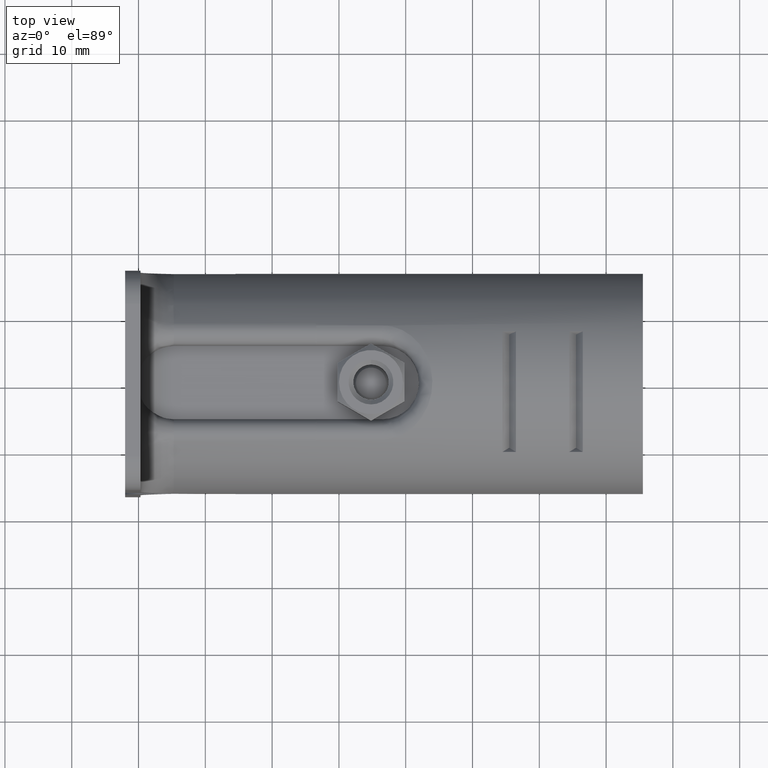
[diagram: clean part render]
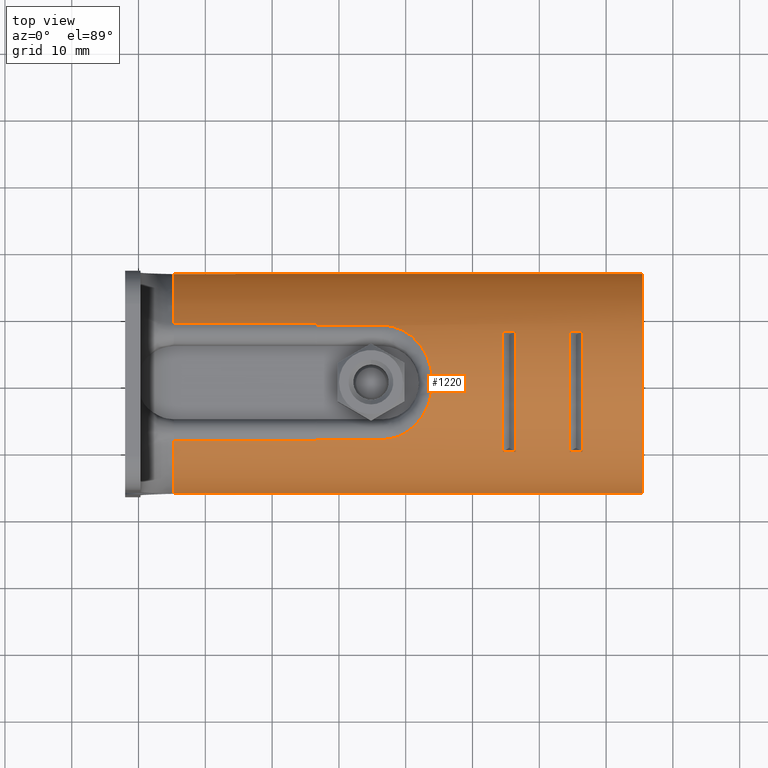
[diagram: same view with one face highlighted and labeled with its STEP entity id]
A machine part, top view. The second image highlights one B-rep face of the part: STEP entity #1220.
In plain terms, the highlighted cylindrical surface (partial cylindrical patch) has radius 16.5 mm, axis along (-1, 0, 0).
Its self-contained STEP definition (entity closure, byte-faithful):
#38 = DIRECTION ( 'NONE',  ( -1.000000000000000000, 0.000000000000000000, 0.000000000000000000 ) ) ;
#52 = EDGE_CURVE ( 'NONE', #2660, #7769, #12528, .T. ) ;
#99 = CARTESIAN_POINT ( 'NONE',  ( 26.49999999902000170, 8.532221492319999712, 14.12271829668000045 ) ) ;
#178 = CARTESIAN_POINT ( 'NONE',  ( -4.700000000000000178, 0.000000000000000000, 0.000000000000000000 ) ) ;
#301 = AXIS2_PLACEMENT_3D ( 'NONE', #5399, #20593, #3683 ) ;
#403 = CIRCLE ( 'NONE', #21330, 16.50000000000000355 ) ;
#440 = CARTESIAN_POINT ( 'NONE',  ( 31.12219301227714752, 6.721380856533748727, 15.06900067574641966 ) ) ;
#486 = DIRECTION ( 'NONE',  ( 0.000000000000000000, -0.6290635339863875908, 0.7773538899423845239 ) ) ;
#489 = VERTEX_POINT ( 'NONE', #19041 ) ;
#573 = ORIENTED_EDGE ( 'NONE', *, *, #5079, .T. ) ;
#605 = CARTESIAN_POINT ( 'NONE',  ( -4.700000000000000178, 8.793709622338999665, 13.96139018340000071 ) ) ;
#636 = CARTESIAN_POINT ( 'NONE',  ( 31.12240410789961942, -6.725412656935299438, 15.06811766180911505 ) ) ;
#747 = CARTESIAN_POINT ( 'NONE',  ( -4.000000000000000000, 16.43167672514999822, 1.500000000000000000 ) ) ;
#751 = CARTESIAN_POINT ( 'NONE',  ( 32.94846964657010346, 4.357845667556117242, 15.91422211981977775 ) ) ;
#859 = CARTESIAN_POINT ( 'NONE',  ( 33.80846163388365966, -1.933018522917530069, 16.38810663770023623 ) ) ;
#906 = CARTESIAN_POINT ( 'NONE',  ( 46.50000000000000000, 7.620451689224000624, 14.63484595245999920 ) ) ;
#950 = VECTOR ( 'NONE', #18025, 1000.000000000000000 ) ;
#956 = CARTESIAN_POINT ( 'NONE',  ( 31.70041331587229649, -6.151032671605825008, 15.31090555844572876 ) ) ;
#997 = VECTOR ( 'NONE', #12013, 1000.000000000000000 ) ;
#1066 = CARTESIAN_POINT ( 'NONE',  ( 33.11683839140767560, 4.025588890698280409, 16.00302075740041730 ) ) ;
#1084 = EDGE_CURVE ( 'NONE', #9320, #3511, #8273, .T. ) ;
#1153 = VERTEX_POINT ( 'NONE', #13355 ) ;
#1207 = ORIENTED_EDGE ( 'NONE', *, *, #5714, .T. ) ;
#1220 = ADVANCED_FACE ( 'NONE', ( #5185, #15543, #20279 ), #3575, .T. ) ;
#1242 = CARTESIAN_POINT ( 'NONE',  ( 46.50000000000000000, -10.37954831077999884, 12.82633918404999918 ) ) ;
#1466 = EDGE_CURVE ( 'NONE', #11993, #11050, #11798, .T. ) ;
#1642 = CARTESIAN_POINT ( 'NONE',  ( 65.50000000000000000, 0.000000000000000000, 0.000000000000000000 ) ) ;
#1661 = CARTESIAN_POINT ( 'NONE',  ( 46.50000000000000000, -10.37954831077999884, 12.82633918404999918 ) ) ;
#1691 = VECTOR ( 'NONE', #17975, 1000.000000000000000 ) ;
#1811 = CARTESIAN_POINT ( 'NONE',  ( 30.14793475069829398, 7.457048805584250317, 14.71881126214344171 ) ) ;
#1855 = EDGE_CURVE ( 'NONE', #13505, #17544, #14773, .T. ) ;
#1884 = ORIENTED_EDGE ( 'NONE', *, *, #4150, .F. ) ;
#1924 = CARTESIAN_POINT ( 'NONE',  ( 29.92360564718172355, 7.594929155194949821, 14.64832644325415245 ) ) ;
#2002 = AXIS2_PLACEMENT_3D ( 'NONE', #15906, #2362, #14014 ) ;
#2041 = CARTESIAN_POINT ( 'NONE',  ( 16.69051446749000078, 8.532223837475999773, 14.12267188647000005 ) ) ;
#2047 = VERTEX_POINT ( 'NONE', #747 ) ;
#2225 = VERTEX_POINT ( 'NONE', #20384 ) ;
#2294 = EDGE_CURVE ( 'NONE', #11993, #17544, #20212, .T. ) ;
#2353 = CARTESIAN_POINT ( 'NONE',  ( 32.08582940128891181, -5.700785428464818061, 15.48525766996171704 ) ) ;
#2362 = DIRECTION ( 'NONE',  ( -1.000000000000000000, 0.000000000000000000, 0.000000000000000000 ) ) ;
#2414 = CARTESIAN_POINT ( 'NONE',  ( 46.50000000000000000, 0.000000000000000000, 0.000000000000000000 ) ) ;
#2468 = CARTESIAN_POINT ( 'NONE',  ( 16.69051064318999877, -8.532224505211997823, 14.12267162089000117 ) ) ;
#2470 = CARTESIAN_POINT ( 'NONE',  ( 31.93558551534559342, -5.885866425272054947, 15.41566424813026082 ) ) ;
#2537 = B_SPLINE_CURVE_WITH_KNOTS ( 'NONE', 3,
 ( #3933, #20442, #12197, #13927 ),
 .UNSPECIFIED., .F., .F.,
 ( 4, 4 ),
 ( 0.000000000000000000, 1.000000000000000000 ),
 .UNSPECIFIED. ) ;
#2553 = AXIS2_PLACEMENT_3D ( 'NONE', #13132, #6487, #20170 ) ;
#2586 = CARTESIAN_POINT ( 'NONE',  ( 33.21898078998936654, 3.800401653616999553, 16.05809364580159482 ) ) ;
#2660 = VERTEX_POINT ( 'NONE', #11238 ) ;
#2703 = CARTESIAN_POINT ( 'NONE',  ( 31.45666054216051677, -6.405357489741653865, 15.20603136138839240 ) ) ;
#2813 = CARTESIAN_POINT ( 'NONE',  ( 33.54582092299990848, 2.925129781151098562, 16.23875239057163711 ) ) ;
#3014 = CARTESIAN_POINT ( 'NONE',  ( 4.500000000000000000, 16.46966909200000018, 1.000000000000000000 ) ) ;
#3199 = DIRECTION ( 'NONE',  ( 1.000000000000000000, 0.000000000000000000, 0.000000000000000000 ) ) ;
#3218 = CARTESIAN_POINT ( 'NONE',  ( 65.50000000000000000, 16.46966909200000018, 1.000000000000000000 ) ) ;
#3226 = DIRECTION ( 'NONE',  ( -1.000000000000000000, 0.000000000000000000, 0.000000000000000000 ) ) ;
#3233 = CARTESIAN_POINT ( 'NONE',  ( 27.99999999972999731, 8.362049855777001994, 14.22413565987999995 ) ) ;
#3234 = ORIENTED_EDGE ( 'NONE', *, *, #4811, .T. ) ;
#3235 = ORIENTED_EDGE ( 'NONE', *, *, #10408, .T. ) ;
#3244 = EDGE_CURVE ( 'NONE', #9740, #2660, #21147, .T. ) ;
#3313 = VERTEX_POINT ( 'NONE', #16837 ) ;
#3411 = CARTESIAN_POINT ( 'NONE',  ( -4.000000000000000000, 16.43167672514999822, 1.500000000000000000 ) ) ;
#3444 = DIRECTION ( 'NONE',  ( -1.000000000000000000, 0.000000000000000000, 0.000000000000000000 ) ) ;
#3450 = CARTESIAN_POINT ( 'NONE',  ( 27.00973079907190311, 8.532257371116667599, 14.12269748152757565 ) ) ;
#3481 = LINE ( 'NONE', #10084, #6360 ) ;
#3511 = VERTEX_POINT ( 'NONE', #11362 ) ;
#3523 = CARTESIAN_POINT ( 'NONE',  ( -4.700000000000000178, 16.42884679370000001, 1.530683843640999964 ) ) ;
#3575 = CYLINDRICAL_SURFACE ( 'NONE', #301, 16.50000000000000000 ) ;
#3596 = CARTESIAN_POINT ( 'NONE',  ( 28.38948258338935560, 8.271575638789229856, 14.27732647587170511 ) ) ;
#3618 = EDGE_CURVE ( 'NONE', #5807, #11913, #12140, .T. ) ;
#3644 = ORIENTED_EDGE ( 'NONE', *, *, #19133, .T. ) ;
#3683 = DIRECTION ( 'NONE',  ( 0.000000000000000000, 1.000000000000000000, 0.000000000000000000 ) ) ;
#3694 = LINE ( 'NONE', #10413, #4892 ) ;
#3702 = CARTESIAN_POINT ( 'NONE',  ( 30.42153188437745115, 7.278963987723555462, 14.80826979873417493 ) ) ;
#3735 = ORIENTED_EDGE ( 'NONE', *, *, #12110, .T. ) ;
#3908 = CARTESIAN_POINT ( 'NONE',  ( 19.96034042863333369, -8.532237117428309148, 14.12270971775805961 ) ) ;
#3909 = CARTESIAN_POINT ( 'NONE',  ( 28.77065060431867849, 8.147150517533452430, 14.34947063349022756 ) ) ;
#3933 = CARTESIAN_POINT ( 'NONE',  ( 16.49998531529999823, -8.793551395695999418, 13.96148182842000018 ) ) ;
#3935 = DIRECTION ( 'NONE',  ( 0.000000000000000000, -0.9958591954639380850, 0.09090909090909353452 ) ) ;
#4014 = CARTESIAN_POINT ( 'NONE',  ( 32.15818042489721051, 5.603456784641278610, 15.51972990243371164 ) ) ;
#4126 = CARTESIAN_POINT ( 'NONE',  ( 30.95147257239222682, -6.873114171650634319, 15.00112394183167552 ) ) ;
#4150 = EDGE_CURVE ( 'NONE', #14128, #13505, #19856, .T. ) ;
#4205 = CARTESIAN_POINT ( 'NONE',  ( 2.366662469676665825, 8.793652940578745358, 13.96141780643319663 ) ) ;
#4244 = CARTESIAN_POINT ( 'NONE',  ( 31.62345098526546394, 6.237926174750803909, 15.27659698094809571 ) ) ;
#4353 = CARTESIAN_POINT ( 'NONE',  ( 30.55509368959533134, -7.181353784585058797, 14.85554198406263815 ) ) ;
#4461 = CARTESIAN_POINT ( 'NONE',  ( 32.97780865251371551, 4.301137122462976414, 15.92964129880801138 ) ) ;
#4535 = VECTOR ( 'NONE', #15287, 1000.000000000000000 ) ;
#4539 = ORIENTED_EDGE ( 'NONE', *, *, #19260, .T. ) ;
#4664 = VECTOR ( 'NONE', #18835, 1000.000000000000000 ) ;
#4709 = CIRCLE ( 'NONE', #11319, 16.50000000000001066 ) ;
#4798 = ORIENTED_EDGE ( 'NONE', *, *, #15634, .T. ) ;
#4811 = EDGE_CURVE ( 'NONE', #489, #1153, #8928, .T. ) ;
#4849 = AXIS2_PLACEMENT_3D ( 'NONE', #16601, #38, #19993 ) ;
#4892 = VECTOR ( 'NONE', #6922, 1000.000000000000000 ) ;
#4951 = EDGE_CURVE ( 'NONE', #9901, #3511, #8119, .T. ) ;
#4966 = CARTESIAN_POINT ( 'NONE',  ( 27.50973079930857068, 8.475938587155415149, 14.15718608887218188 ) ) ;
#4972 = CARTESIAN_POINT ( 'NONE',  ( 4.500000000000000000, -16.46966909200000018, 1.000000000000000000 ) ) ;
#5064 = CARTESIAN_POINT ( 'NONE',  ( 54.50000000000000000, 0.000000000000000000, 0.000000000000000000 ) ) ;
#5079 = EDGE_CURVE ( 'NONE', #9740, #17106, #16070, .T. ) ;
#5093 = VECTOR ( 'NONE', #12458, 1000.000000000000000 ) ;
#5185 = FACE_BOUND ( 'NONE', #10058, .T. ) ;
#5188 = AXIS2_PLACEMENT_3D ( 'NONE', #12309, #12518, #3935 ) ;
#5254 = ORIENTED_EDGE ( 'NONE', *, *, #16963, .F. ) ;
#5399 = CARTESIAN_POINT ( 'NONE',  ( 65.50000000000000000, 0.000000000000000000, 0.000000000000000000 ) ) ;
#5561 = VERTEX_POINT ( 'NONE', #2041 ) ;
#5631 = CARTESIAN_POINT ( 'NONE',  ( 27.99999999983999999, -8.362048485053000135, 14.22413332834999977 ) ) ;
#5714 = EDGE_CURVE ( 'NONE', #14128, #21243, #10951, .T. ) ;
#5807 = VERTEX_POINT ( 'NONE', #12328 ) ;
#5818 = CARTESIAN_POINT ( 'NONE',  ( 54.50000000000000000, 7.620451689224000624, 14.63484595245999920 ) ) ;
#5848 = CARTESIAN_POINT ( 'NONE',  ( 33.85453605389484721, 1.939883479759710205, 16.41260163521980431 ) ) ;
#5931 = VERTEX_POINT ( 'NONE', #19056 ) ;
#5954 = CARTESIAN_POINT ( 'NONE',  ( 33.21524455956506472, -3.802594882773971730, 16.05626634881485870 ) ) ;
#6007 = CARTESIAN_POINT ( 'NONE',  ( -4.000000000000000000, -16.43167672514999822, 1.500000000000000000 ) ) ;
#6064 = CARTESIAN_POINT ( 'NONE',  ( 30.28084470741175238, -7.370875879142336551, 14.76215591376767655 ) ) ;
#6127 = EDGE_CURVE ( 'NONE', #21243, #8416, #11275, .T. ) ;
#6155 = ORIENTED_EDGE ( 'NONE', *, *, #8801, .T. ) ;
#6170 = CARTESIAN_POINT ( 'NONE',  ( 46.50000000000000000, 7.620451689224000624, 14.63484595245999920 ) ) ;
#6291 = CARTESIAN_POINT ( 'NONE',  ( -4.000000000000000000, -16.43167672514999822, 1.500000000000000000 ) ) ;
#6360 = VECTOR ( 'NONE', #21301, 1000.000000000000000 ) ;
#6365 = ORIENTED_EDGE ( 'NONE', *, *, #16667, .T. ) ;
#6487 = DIRECTION ( 'NONE',  ( 1.000000000000000000, 0.000000000000000000, 0.000000000000000000 ) ) ;
#6506 = CARTESIAN_POINT ( 'NONE',  ( 27.99999999983999999, -8.362048485053000135, 14.22413332834999977 ) ) ;
#6560 = CARTESIAN_POINT ( 'NONE',  ( 4.500000000000000000, -16.43167672514999822, 1.500000000000000000 ) ) ;
#6718 = CARTESIAN_POINT ( 'NONE',  ( 16.62796137481200276, -8.619847426968352266, 14.06977987204380831 ) ) ;
#6734 = ORIENTED_EDGE ( 'NONE', *, *, #1084, .T. ) ;
#6749 = CARTESIAN_POINT ( 'NONE',  ( -4.116917554736999385, 16.43167672514999822, 1.500000000000000000 ) ) ;
#6922 = DIRECTION ( 'NONE',  ( -1.000000000000000000, 0.000000000000000000, -1.246101949094000112E-14 ) ) ;
#6991 = CARTESIAN_POINT ( 'NONE',  ( 4.500000000000000000, -16.43167672514999822, 1.500000000000000000 ) ) ;
#7035 = CARTESIAN_POINT ( 'NONE',  ( 31.20661259812780841, 6.645060646287967110, 15.10281136051759354 ) ) ;
#7252 = CARTESIAN_POINT ( 'NONE',  ( 32.51277921722282116, 5.107675095092773176, 15.69107982186297789 ) ) ;
#7466 = CARTESIAN_POINT ( 'NONE',  ( 33.40375226101266293, -3.344186571010634879, 16.15926425327795712 ) ) ;
#7527 = CARTESIAN_POINT ( 'NONE',  ( 16.49998740902999828, 8.793546861955999105, 13.96148461890999926 ) ) ;
#7564 = CARTESIAN_POINT ( 'NONE',  ( 33.85395031568128843, -1.695291996769289655, 16.41443719947986679 ) ) ;
#7619 = CARTESIAN_POINT ( 'NONE',  ( -4.700000000000000178, -16.42884679370000001, 1.530683843640999964 ) ) ;
#7676 = CARTESIAN_POINT ( 'NONE',  ( 33.52596393905794514, 2.986407853970498127, 16.22759979762809479 ) ) ;
#7693 = CARTESIAN_POINT ( 'NONE',  ( 16.56455332032559724, 8.706820714295819386, 14.01612571730214185 ) ) ;
#7769 = VERTEX_POINT ( 'NONE', #5818 ) ;
#7867 = CARTESIAN_POINT ( 'NONE',  ( 54.50000000000000000, -10.37954831077999884, 12.82633918404999918 ) ) ;
#7893 = DIRECTION ( 'NONE',  ( -1.000000000000000000, 0.000000000000000000, 0.000000000000000000 ) ) ;
#8001 = CARTESIAN_POINT ( 'NONE',  ( 27.99999999972999731, 8.362049855777001994, 14.22413565987999995 ) ) ;
#8119 = LINE ( 'NONE', #6170, #20370 ) ;
#8273 = CIRCLE ( 'NONE', #2002, 16.50000000000001066 ) ;
#8366 = B_SPLINE_CURVE_WITH_KNOTS ( 'NONE', 3,
 ( #15236, #6718, #13583, #20084 ),
 .UNSPECIFIED., .F., .F.,
 ( 4, 4 ),
 ( 0.000000000000000000, 1.000000000000000000 ),
 .UNSPECIFIED. ) ;
#8413 = CARTESIAN_POINT ( 'NONE',  ( 44.50000000000000000, -10.37954831077999884, 12.82633918404999918 ) ) ;
#8416 = VERTEX_POINT ( 'NONE', #10446 ) ;
#8500 = EDGE_LOOP ( 'NONE', ( #6734, #18233, #11997, #19020 ) ) ;
#8524 = EDGE_CURVE ( 'NONE', #2225, #11913, #2537, .T. ) ;
#8731 = B_SPLINE_CURVE_WITH_KNOTS ( 'NONE', 3,
 ( #20198, #3596, #3909, #15143, #16891, #11745, #1924, #13588, #1811, #18650, #3702, #15350, #10315, #16995, #440, #7035, #13695, #21061, #4244, #14117, #20842, #11090, #4014, #9111, #7252, #9335, #17536, #14223, #751, #4461, #1066, #2586, #12593, #17763, #20733, #7676, #2813, #5848, #12485, #13899, #18959, #7564, #859, #19059, #10863, #17299, #14008, #17415, #16008, #7466, #10744, #5954, #9442, #19284, #19171, #17654, #9227, #15900, #15791, #12271, #2353, #2470, #956, #10628, #2703, #20949, #15674, #636, #4126, #19398, #4353, #14337, #10984, #6064, #12714, #20621, #5631 ),
 .UNSPECIFIED., .F., .F.,
 ( 4, 2, 2, 1, 2, 2, 2, 1, 2, 2, 2, 2, 2, 2, 1, 2, 2, 2, 1, 2, 2, 2, 2, 2, 1, 2, 2, 2, 2, 2, 2, 2, 2, 2, 1, 2, 2, 2, 1, 2, 2, 4 ),
 ( 0.000000000000000000, 0.06249999999999886202, 0.09374999999999834854, 0.1093749999999981126, 0.1171874999999977934, 0.1249999999999974742, 0.1562499999999958922, 0.1718749999999950595, 0.1796874999999947820, 0.1874999999999945044, 0.2187499999999927558, 0.2343749999999915623, 0.2499999999999903966, 0.2812499999999880651, 0.2968749999999868439, 0.3046874999999863998, 0.3124999999999860112, 0.3437499999999860112, 0.3593749999999861777, 0.3671874999999862332, 0.3749999999999862887, 0.4999999999999907851, 0.5624999999999930056, 0.5937499999999942268, 0.6093749999999948930, 0.6171874999999953371, 0.6249999999999956701, 0.6562499999999967804, 0.6718749999999972244, 0.6874999999999975575, 0.7187499999999978906, 0.7343749999999981126, 0.7499999999999981126, 0.7812499999999987788, 0.7968749999999993339, 0.8046874999999993339, 0.8124999999999993339, 0.8437499999999991118, 0.8593749999999987788, 0.8671874999999987788, 0.8749999999999986677, 1.000000000000000000 ),
 .UNSPECIFIED. ) ;
#8753 = CARTESIAN_POINT ( 'NONE',  ( 56.50000000000000000, -10.37954831077999884, 12.82633918404999918 ) ) ;
#8801 = EDGE_CURVE ( 'NONE', #13632, #13568, #8731, .T. ) ;
#8928 = B_SPLINE_CURVE_WITH_KNOTS ( 'NONE', 3,
 ( #10861, #14222, #3908, #2468 ),
 .UNSPECIFIED., .F., .F.,
 ( 4, 4 ),
 ( 0.000000000000000000, 1.000000000000000000 ),
 .UNSPECIFIED. ) ;
#8949 = VERTEX_POINT ( 'NONE', #99 ) ;
#9111 = CARTESIAN_POINT ( 'NONE',  ( 32.37569646739796525, 5.310316880606834822, 15.62349229061455702 ) ) ;
#9165 = CARTESIAN_POINT ( 'NONE',  ( -4.350501695292000370, -16.43121019951999884, 1.505123684108000015 ) ) ;
#9227 = CARTESIAN_POINT ( 'NONE',  ( 32.57621744292870858, -5.004541478514354935, 15.72312367217289264 ) ) ;
#9285 = DIRECTION ( 'NONE',  ( -1.000000000000000000, 0.000000000000000000, 0.000000000000000000 ) ) ;
#9311 = EDGE_LOOP ( 'NONE', ( #16958, #16479, #10185, #5254, #19469, #3235, #3735, #6155, #3644, #3234, #4539, #18260, #14742, #18600, #4798, #20716, #10838, #17692, #1884, #1207, #17738, #6365 ) ) ;
#9320 = VERTEX_POINT ( 'NONE', #8413 ) ;
#9324 = B_SPLINE_CURVE_WITH_KNOTS ( 'NONE', 3,
 ( #9952, #3450, #4966, #3233 ),
 .UNSPECIFIED., .F., .F.,
 ( 4, 4 ),
 ( 0.000000000000000000, 1.000000000000000000 ),
 .UNSPECIFIED. ) ;
#9335 = CARTESIAN_POINT ( 'NONE',  ( 32.70651142419657731, 4.792773551867548498, 15.78896463970312602 ) ) ;
#9442 = CARTESIAN_POINT ( 'NONE',  ( 33.11307683511749644, -4.027641644878897864, 16.00129743761487688 ) ) ;
#9447 = EDGE_CURVE ( 'NONE', #17106, #7769, #19324, .T. ) ;
#9459 = EDGE_CURVE ( 'NONE', #21035, #9901, #4709, .T. ) ;
#9461 = CARTESIAN_POINT ( 'NONE',  ( 16.69051446749000078, 8.532223837475999773, 14.12267188647000005 ) ) ;
#9740 = VERTEX_POINT ( 'NONE', #11714 ) ;
#9901 = VERTEX_POINT ( 'NONE', #906 ) ;
#9952 = CARTESIAN_POINT ( 'NONE',  ( 26.49999999902000170, 8.532221492319999712, 14.12271829668000045 ) ) ;
#10058 = EDGE_LOOP ( 'NONE', ( #20101, #18265, #13762, #573 ) ) ;
#10084 = CARTESIAN_POINT ( 'NONE',  ( -4.000000000000000000, -16.43167672514999822, 1.500000000000000000 ) ) ;
#10185 = ORIENTED_EDGE ( 'NONE', *, *, #11463, .F. ) ;
#10315 = CARTESIAN_POINT ( 'NONE',  ( 30.86476319300628646, 6.941544144869157940, 14.96899563094186902 ) ) ;
#10342 = B_SPLINE_CURVE_WITH_KNOTS ( 'NONE', 3,
 ( #20859, #7693, #14352, #9461 ),
 .UNSPECIFIED., .F., .F.,
 ( 4, 4 ),
 ( 0.000000000000000000, 1.000000000000000000 ),
 .UNSPECIFIED. ) ;
#10399 = CARTESIAN_POINT ( 'NONE',  ( -4.700000000000000178, -8.793692989582998720, 13.96140071194000143 ) ) ;
#10408 = EDGE_CURVE ( 'NONE', #5561, #8949, #21329, .T. ) ;
#10413 = CARTESIAN_POINT ( 'NONE',  ( -2.699203049050999947, 16.43167672514999822, 1.500000000000000000 ) ) ;
#10446 = CARTESIAN_POINT ( 'NONE',  ( 4.500000000000000000, 16.43167672514999822, 1.500000000000000000 ) ) ;
#10628 = CARTESIAN_POINT ( 'NONE',  ( 31.58037562349609573, -6.280502822282680420, 15.25843229338112472 ) ) ;
#10663 = EDGE_CURVE ( 'NONE', #5807, #15641, #11870, .T. ) ;
#10744 = CARTESIAN_POINT ( 'NONE',  ( 33.26406731501062097, -3.688878453988386763, 16.08278666801711054 ) ) ;
#10838 = ORIENTED_EDGE ( 'NONE', *, *, #2294, .T. ) ;
#10861 = CARTESIAN_POINT ( 'NONE',  ( 26.49999999951999996, -8.532221500501998790, 14.12271831023000068 ) ) ;
#10863 = CARTESIAN_POINT ( 'NONE',  ( 33.68224660020786132, -2.462958858983121502, 16.31589184042972818 ) ) ;
#10883 = B_SPLINE_CURVE_WITH_KNOTS ( 'NONE', 3,
 ( #6506, #14696, #21406, #12846 ),
 .UNSPECIFIED., .F., .F.,
 ( 4, 4 ),
 ( 0.000000000000000000, 1.000000000000000000 ),
 .UNSPECIFIED. ) ;
#10936 = EDGE_CURVE ( 'NONE', #2047, #20208, #20497, .T. ) ;
#10951 = LINE ( 'NONE', #15973, #5093 ) ;
#10984 = CARTESIAN_POINT ( 'NONE',  ( 30.32824361279330105, -7.339176698548866007, 14.77794635807045331 ) ) ;
#11050 = VERTEX_POINT ( 'NONE', #18005 ) ;
#11090 = CARTESIAN_POINT ( 'NONE',  ( 32.08546276896218075, 5.697131587865638558, 15.48555652715957542 ) ) ;
#11193 = CARTESIAN_POINT ( 'NONE',  ( 27.99999999983999999, -8.362048485053000135, 14.22413332834999977 ) ) ;
#11238 = CARTESIAN_POINT ( 'NONE',  ( 56.50000000000000000, 7.620451689224000624, 14.63484595245999920 ) ) ;
#11275 = CIRCLE ( 'NONE', #2553, 16.50000000000000000 ) ;
#11319 = AXIS2_PLACEMENT_3D ( 'NONE', #2414, #9285, #15849 ) ;
#11362 = CARTESIAN_POINT ( 'NONE',  ( 44.50000000000000000, 7.620451689224000624, 14.63484595245999920 ) ) ;
#11463 = EDGE_CURVE ( 'NONE', #14046, #20208, #403, .T. ) ;
#11714 = CARTESIAN_POINT ( 'NONE',  ( 56.50000000000000000, -10.37954831077999884, 12.82633918404999918 ) ) ;
#11745 = CARTESIAN_POINT ( 'NONE',  ( 29.78768305163669439, 7.671763112142199859, 14.60811822337054089 ) ) ;
#11798 = LINE ( 'NONE', #6991, #997 ) ;
#11870 = B_SPLINE_CURVE_WITH_KNOTS ( 'NONE', 3,
 ( #7619, #20672, #9165, #12540, #6007 ),
 .UNSPECIFIED., .F., .F.,
 ( 4, 1, 4 ),
 ( 0.000000000000000000, 0.5000000000000000000, 1.000000000000000000 ),
 .UNSPECIFIED. ) ;
#11913 = VERTEX_POINT ( 'NONE', #10399 ) ;
#11993 = VERTEX_POINT ( 'NONE', #6560 ) ;
#11997 = ORIENTED_EDGE ( 'NONE', *, *, #9459, .F. ) ;
#12003 = EDGE_CURVE ( 'NONE', #21035, #9320, #16626, .T. ) ;
#12013 = DIRECTION ( 'NONE',  ( -1.000000000000000000, 0.000000000000000000, 0.000000000000000000 ) ) ;
#12110 = EDGE_CURVE ( 'NONE', #8949, #13632, #9324, .T. ) ;
#12140 = CIRCLE ( 'NONE', #4849, 16.50000000000000711 ) ;
#12154 = AXIS2_PLACEMENT_3D ( 'NONE', #1642, #3199, #13190 ) ;
#12197 = CARTESIAN_POINT ( 'NONE',  ( 2.366661771766670697, -8.793651102596312441, 13.96143618288463450 ) ) ;
#12271 = CARTESIAN_POINT ( 'NONE',  ( 32.30138885964561268, -5.410455484689705941, 15.58805668933165123 ) ) ;
#12309 = CARTESIAN_POINT ( 'NONE',  ( 4.500000000000000000, 0.000000000000000000, 0.000000000000000000 ) ) ;
#12328 = CARTESIAN_POINT ( 'NONE',  ( -4.700000000000000178, -16.42884679370000001, 1.530683843640999964 ) ) ;
#12458 = DIRECTION ( 'NONE',  ( -1.000000000000000000, 0.000000000000000000, 0.000000000000000000 ) ) ;
#12485 = CARTESIAN_POINT ( 'NONE',  ( 33.99975267807793244, 0.9796868208001658918, 16.50006783924602516 ) ) ;
#12518 = DIRECTION ( 'NONE',  ( 1.000000000000000000, 0.000000000000000000, 0.000000000000000000 ) ) ;
#12528 = LINE ( 'NONE', #19668, #950 ) ;
#12540 = CARTESIAN_POINT ( 'NONE',  ( -4.116917554736999385, -16.43167672514999822, 1.500000000000000000 ) ) ;
#12593 = CARTESIAN_POINT ( 'NONE',  ( 33.35857229906173416, 3.455633680943785091, 16.13451120826608687 ) ) ;
#12714 = CARTESIAN_POINT ( 'NONE',  ( 29.52401459920528737, -7.865209426416312155, 14.51411187066978314 ) ) ;
#12807 = CARTESIAN_POINT ( 'NONE',  ( 65.50000000000000000, -16.46966909200000018, 1.000000000000000000 ) ) ;
#12846 = CARTESIAN_POINT ( 'NONE',  ( 26.49999999951999996, -8.532221500501998790, 14.12271831023000068 ) ) ;
#13021 = CARTESIAN_POINT ( 'NONE',  ( 23.23017148850999902, 8.532229293165366713, 14.12271444478454185 ) ) ;
#13132 = CARTESIAN_POINT ( 'NONE',  ( 4.500000000000000000, 0.000000000000000000, 0.000000000000000000 ) ) ;
#13190 = DIRECTION ( 'NONE',  ( 0.000000000000000000, 0.9981617631515520284, 0.06060606060605710360 ) ) ;
#13317 = DIRECTION ( 'NONE',  ( -1.000000000000000000, 0.000000000000000000, 0.000000000000000000 ) ) ;
#13355 = CARTESIAN_POINT ( 'NONE',  ( 16.69051064318999877, -8.532224505211997823, 14.12267162089000117 ) ) ;
#13411 = AXIS2_PLACEMENT_3D ( 'NONE', #15086, #13317, #20141 ) ;
#13505 = VERTEX_POINT ( 'NONE', #12807 ) ;
#13568 = VERTEX_POINT ( 'NONE', #11193 ) ;
#13583 = CARTESIAN_POINT ( 'NONE',  ( 16.56445293218200376, -8.706957246876331880, 14.01603976220120984 ) ) ;
#13588 = CARTESIAN_POINT ( 'NONE',  ( 30.05835900734285815, 7.512898890434931864, 14.69038230004813528 ) ) ;
#13632 = VERTEX_POINT ( 'NONE', #8001 ) ;
#13695 = CARTESIAN_POINT ( 'NONE',  ( 31.24771813326239567, 6.607091866327979623, 15.11946592619544738 ) ) ;
#13762 = ORIENTED_EDGE ( 'NONE', *, *, #3244, .F. ) ;
#13899 = CARTESIAN_POINT ( 'NONE',  ( 33.99956915450542283, -0.4915562469546229662, 16.49996602110811494 ) ) ;
#13927 = CARTESIAN_POINT ( 'NONE',  ( -4.700000000000000178, -8.793692989582998720, 13.96140071194000143 ) ) ;
#14008 = CARTESIAN_POINT ( 'NONE',  ( 33.59867911742119162, -2.754475072000625246, 16.26856940541393826 ) ) ;
#14014 = DIRECTION ( 'NONE',  ( 0.000000000000000000, -0.6290635339863875908, 0.7773538899423845239 ) ) ;
#14046 = VERTEX_POINT ( 'NONE', #14533 ) ;
#14117 = CARTESIAN_POINT ( 'NONE',  ( 31.85857293545615931, 5.972710994575527899, 15.38134447781678737 ) ) ;
#14128 = VERTEX_POINT ( 'NONE', #3218 ) ;
#14222 = CARTESIAN_POINT ( 'NONE',  ( 23.23017021407667215, -8.532229495408754971, 14.12271432259946913 ) ) ;
#14223 = CARTESIAN_POINT ( 'NONE',  ( 32.88983820312727602, 4.468291750306522481, 15.88356551204236489 ) ) ;
#14337 = CARTESIAN_POINT ( 'NONE',  ( 30.41932029859712827, -7.276720592608131533, 14.80879976877407600 ) ) ;
#14352 = CARTESIAN_POINT ( 'NONE',  ( 16.62806233981226711, 8.619710654530331695, 14.06986250836198948 ) ) ;
#14533 = CARTESIAN_POINT ( 'NONE',  ( -4.700000000000000178, 8.793709622338999665, 13.96139018340000071 ) ) ;
#14559 = LINE ( 'NONE', #20940, #16047 ) ;
#14663 = EDGE_CURVE ( 'NONE', #3313, #5561, #10342, .T. ) ;
#14696 = CARTESIAN_POINT ( 'NONE',  ( 27.50973029329510311, -8.475938655594632110, 14.15718604863886299 ) ) ;
#14742 = ORIENTED_EDGE ( 'NONE', *, *, #3618, .F. ) ;
#14773 = LINE ( 'NONE', #21048, #1691 ) ;
#14885 = CARTESIAN_POINT ( 'NONE',  ( 16.69051446749000078, 8.532223837475999773, 14.12267188647000005 ) ) ;
#15086 = CARTESIAN_POINT ( 'NONE',  ( 56.50000000000000000, 0.000000000000000000, 0.000000000000000000 ) ) ;
#15143 = CARTESIAN_POINT ( 'NONE',  ( 29.32993079161760264, 7.907387056921729496, 14.48211214520218348 ) ) ;
#15168 = CARTESIAN_POINT ( 'NONE',  ( -4.350501695292000370, 16.43121019951999884, 1.505123684108000015 ) ) ;
#15236 = CARTESIAN_POINT ( 'NONE',  ( 16.69051064318999877, -8.532224505211997823, 14.12267162089000117 ) ) ;
#15287 = DIRECTION ( 'NONE',  ( -1.000000000000000000, 0.000000000000000000, 0.000000000000000000 ) ) ;
#15350 = CARTESIAN_POINT ( 'NONE',  ( 30.60149388732904541, 7.149528407045123046, 14.87137198829184648 ) ) ;
#15543 = FACE_BOUND ( 'NONE', #8500, .T. ) ;
#15634 = EDGE_CURVE ( 'NONE', #15641, #11050, #3481, .T. ) ;
#15641 = VERTEX_POINT ( 'NONE', #6291 ) ;
#15674 = CARTESIAN_POINT ( 'NONE',  ( 31.33045760923373280, -6.528979324416030572, 15.15335814468561537 ) ) ;
#15763 = CARTESIAN_POINT ( 'NONE',  ( -4.700000000000000178, 16.42884679370000001, 1.530683843640999964 ) ) ;
#15791 = CARTESIAN_POINT ( 'NONE',  ( 32.37259664374574442, -5.310083763513839372, 15.62256051435357485 ) ) ;
#15849 = DIRECTION ( 'NONE',  ( 0.000000000000000000, -0.6290635339863875908, 0.7773538899423845239 ) ) ;
#15900 = CARTESIAN_POINT ( 'NONE',  ( 32.50967361364293140, -5.107581096869911796, 15.68993314004460338 ) ) ;
#15906 = CARTESIAN_POINT ( 'NONE',  ( 44.50000000000000000, 0.000000000000000000, 0.000000000000000000 ) ) ;
#15973 = CARTESIAN_POINT ( 'NONE',  ( 65.50000000000000000, 16.46966909200000018, 1.000000000000000000 ) ) ;
#16008 = CARTESIAN_POINT ( 'NONE',  ( 33.48783113123447208, -3.109665977844887408, 16.20613897170861506 ) ) ;
#16047 = VECTOR ( 'NONE', #7893, 1000.000000000000000 ) ;
#16070 = LINE ( 'NONE', #8753, #4664 ) ;
#16479 = ORIENTED_EDGE ( 'NONE', *, *, #10936, .T. ) ;
#16554 = EDGE_CURVE ( 'NONE', #5931, #2047, #3694, .T. ) ;
#16601 = CARTESIAN_POINT ( 'NONE',  ( -4.700000000000000178, 0.000000000000000000, 0.000000000000000000 ) ) ;
#16626 = LINE ( 'NONE', #1661, #4535 ) ;
#16667 = EDGE_CURVE ( 'NONE', #8416, #5931, #14559, .T. ) ;
#16837 = CARTESIAN_POINT ( 'NONE',  ( 16.49998740902999828, 8.793546861955999105, 13.96148461890999926 ) ) ;
#16891 = CARTESIAN_POINT ( 'NONE',  ( 29.51427888003475530, 7.818600599445796995, 14.53037349050363503 ) ) ;
#16958 = ORIENTED_EDGE ( 'NONE', *, *, #16554, .T. ) ;
#16963 = EDGE_CURVE ( 'NONE', #3313, #14046, #20102, .T. ) ;
#16995 = CARTESIAN_POINT ( 'NONE',  ( 30.99472942115736629, 6.834094128504197840, 15.01854775049315371 ) ) ;
#17106 = VERTEX_POINT ( 'NONE', #7867 ) ;
#17299 = CARTESIAN_POINT ( 'NONE',  ( 33.63278798195387509, -2.638020702726396216, 16.28785836729403158 ) ) ;
#17415 = CARTESIAN_POINT ( 'NONE',  ( 33.58162418512063851, -2.810766254068733261, 16.25894456119445053 ) ) ;
#17536 = CARTESIAN_POINT ( 'NONE',  ( 32.80040454824258234, 4.632589033074529183, 15.83703169235314157 ) ) ;
#17544 = VERTEX_POINT ( 'NONE', #4972 ) ;
#17580 = AXIS2_PLACEMENT_3D ( 'NONE', #5064, #3444, #486 ) ;
#17654 = CARTESIAN_POINT ( 'NONE',  ( 32.76986496379749525, -4.690034076791536499, 15.82092898792580549 ) ) ;
#17692 = ORIENTED_EDGE ( 'NONE', *, *, #1855, .F. ) ;
#17738 = ORIENTED_EDGE ( 'NONE', *, *, #6127, .T. ) ;
#17763 = CARTESIAN_POINT ( 'NONE',  ( 33.42496253139787399, 3.281503760852972906, 16.17117169194059656 ) ) ;
#17975 = DIRECTION ( 'NONE',  ( -1.000000000000000000, 0.000000000000000000, 0.000000000000000000 ) ) ;
#18005 = CARTESIAN_POINT ( 'NONE',  ( -2.699203049050999947, -16.43167672514999822, 1.500000000000000000 ) ) ;
#18025 = DIRECTION ( 'NONE',  ( -1.000000000000000000, 0.000000000000000000, 0.000000000000000000 ) ) ;
#18233 = ORIENTED_EDGE ( 'NONE', *, *, #4951, .F. ) ;
#18260 = ORIENTED_EDGE ( 'NONE', *, *, #8524, .T. ) ;
#18265 = ORIENTED_EDGE ( 'NONE', *, *, #52, .F. ) ;
#18459 = CARTESIAN_POINT ( 'NONE',  ( -4.583584382820000691, 16.42979951668999661, 1.520458257100999910 ) ) ;
#18600 = ORIENTED_EDGE ( 'NONE', *, *, #10663, .T. ) ;
#18650 = CARTESIAN_POINT ( 'NONE',  ( 30.19101796506284074, 7.429571021066855074, 14.73270545897260497 ) ) ;
#18835 = DIRECTION ( 'NONE',  ( -1.000000000000000000, 0.000000000000000000, 0.000000000000000000 ) ) ;
#18959 = CARTESIAN_POINT ( 'NONE',  ( 33.96314150435282642, -0.9770829126959623689, 16.47805701839967440 ) ) ;
#19020 = ORIENTED_EDGE ( 'NONE', *, *, #12003, .T. ) ;
#19041 = CARTESIAN_POINT ( 'NONE',  ( 26.49999999951999996, -8.532221500501998790, 14.12271831023000068 ) ) ;
#19056 = CARTESIAN_POINT ( 'NONE',  ( -2.699203049050999947, 16.43167672514999822, 1.500000000000000000 ) ) ;
#19059 = CARTESIAN_POINT ( 'NONE',  ( 33.72659118282656721, -2.286782774697678988, 16.34119868571428213 ) ) ;
#19133 = EDGE_CURVE ( 'NONE', #13568, #489, #10883, .T. ) ;
#19171 = CARTESIAN_POINT ( 'NONE',  ( 32.89098468839203093, -4.473174536205594798, 15.88378057947060640 ) ) ;
#19260 = EDGE_CURVE ( 'NONE', #1153, #2225, #8366, .T. ) ;
#19284 = CARTESIAN_POINT ( 'NONE',  ( 33.06069634130687263, -4.137061849207696262, 15.97335791991970666 ) ) ;
#19324 = CIRCLE ( 'NONE', #17580, 16.50000000000001066 ) ;
#19359 = CARTESIAN_POINT ( 'NONE',  ( 9.433324939353333605, 8.793599901224428805, 13.96145121260324373 ) ) ;
#19398 = CARTESIAN_POINT ( 'NONE',  ( 30.68834216747098864, -7.080901310870236109, 14.90357980853597297 ) ) ;
#19469 = ORIENTED_EDGE ( 'NONE', *, *, #14663, .T. ) ;
#19668 = CARTESIAN_POINT ( 'NONE',  ( 56.50000000000000000, 7.620451689224000624, 14.63484595245999920 ) ) ;
#19722 = CARTESIAN_POINT ( 'NONE',  ( 26.49999999902000170, 8.532221492319999712, 14.12271829668000045 ) ) ;
#19728 = DIRECTION ( 'NONE',  ( -1.000000000000000000, 0.000000000000000000, 0.000000000000000000 ) ) ;
#19856 = CIRCLE ( 'NONE', #12154, 16.50000000000000000 ) ;
#19940 = CARTESIAN_POINT ( 'NONE',  ( 19.96034297800000346, 8.532236712941024592, 14.12270996212895824 ) ) ;
#19993 = DIRECTION ( 'NONE',  ( 0.000000000000000000, -0.9956876844665726312, 0.09276871779643747207 ) ) ;
#20084 = CARTESIAN_POINT ( 'NONE',  ( 16.49998531529999823, -8.793551395695999418, 13.96148182842000018 ) ) ;
#20101 = ORIENTED_EDGE ( 'NONE', *, *, #9447, .T. ) ;
#20102 = B_SPLINE_CURVE_WITH_KNOTS ( 'NONE', 3,
 ( #7527, #19359, #4205, #605 ),
 .UNSPECIFIED., .F., .F.,
 ( 4, 4 ),
 ( 0.000000000000000000, 1.000000000000000000 ),
 .UNSPECIFIED. ) ;
#20141 = DIRECTION ( 'NONE',  ( 0.000000000000000000, -0.6290635339863875908, 0.7773538899423845239 ) ) ;
#20170 = DIRECTION ( 'NONE',  ( 0.000000000000000000, 0.9981617631515520284, 0.06060606060605710360 ) ) ;
#20198 = CARTESIAN_POINT ( 'NONE',  ( 27.99999999972999731, 8.362049855777001994, 14.22413565987999995 ) ) ;
#20208 = VERTEX_POINT ( 'NONE', #15763 ) ;
#20212 = CIRCLE ( 'NONE', #5188, 16.49999999999999645 ) ;
#20279 = FACE_OUTER_BOUND ( 'NONE', #9311, .T. ) ;
#20370 = VECTOR ( 'NONE', #19728, 1000.000000000000000 ) ;
#20384 = CARTESIAN_POINT ( 'NONE',  ( 16.49998531529999823, -8.793551395695999418, 13.96148182842000018 ) ) ;
#20442 = CARTESIAN_POINT ( 'NONE',  ( 9.433323543533337130, -8.793605117141504834, 13.96146514685103845 ) ) ;
#20497 = B_SPLINE_CURVE_WITH_KNOTS ( 'NONE', 3,
 ( #3411, #6749, #15168, #18459, #3523 ),
 .UNSPECIFIED., .F., .F.,
 ( 4, 1, 4 ),
 ( 0.000000000000000000, 0.5000000000000000000, 1.000000000000000000 ),
 .UNSPECIFIED. ) ;
#20593 = DIRECTION ( 'NONE',  ( -1.000000000000000000, 0.000000000000000000, 0.000000000000000000 ) ) ;
#20621 = CARTESIAN_POINT ( 'NONE',  ( 28.77857283605797178, -8.181214736136420029, 14.33044762087837931 ) ) ;
#20672 = CARTESIAN_POINT ( 'NONE',  ( -4.583584382820000691, -16.42979951668999661, 1.520458257100999910 ) ) ;
#20716 = ORIENTED_EDGE ( 'NONE', *, *, #1466, .F. ) ;
#20733 = CARTESIAN_POINT ( 'NONE',  ( 33.48624448043391766, 3.104788371880918163, 16.20536689581784628 ) ) ;
#20842 = CARTESIAN_POINT ( 'NONE',  ( 31.93530049551612038, 5.882241859229113246, 15.41619278534241566 ) ) ;
#20859 = CARTESIAN_POINT ( 'NONE',  ( 16.49998740902999828, 8.793546861955999105, 13.96148461890999926 ) ) ;
#20940 = CARTESIAN_POINT ( 'NONE',  ( 4.500000000000000000, 16.43167672514999822, 1.500000000000000000 ) ) ;
#20949 = CARTESIAN_POINT ( 'NONE',  ( 31.37336662372360152, -6.487574631984117879, 15.17113607246843721 ) ) ;
#21035 = VERTEX_POINT ( 'NONE', #1242 ) ;
#21048 = CARTESIAN_POINT ( 'NONE',  ( 65.50000000000000000, -16.46966909200000018, 1.000000000000000000 ) ) ;
#21061 = CARTESIAN_POINT ( 'NONE',  ( 31.46011732512395298, 6.406478592053140630, 15.20649983478390332 ) ) ;
#21147 = CIRCLE ( 'NONE', #13411, 16.50000000000001066 ) ;
#21243 = VERTEX_POINT ( 'NONE', #3014 ) ;
#21301 = DIRECTION ( 'NONE',  ( 1.000000000000000000, 0.000000000000000000, 1.382661066803000048E-14 ) ) ;
#21329 = B_SPLINE_CURVE_WITH_KNOTS ( 'NONE', 3,
 ( #14885, #19940, #13021, #19722 ),
 .UNSPECIFIED., .F., .F.,
 ( 4, 4 ),
 ( 0.000000000000000000, 1.000000000000000000 ),
 .UNSPECIFIED. ) ;
#21330 = AXIS2_PLACEMENT_3D ( 'NONE', #178, #3226, #21360 ) ;
#21360 = DIRECTION ( 'NONE',  ( 0.000000000000000000, 0.5329625057383678977, 0.8461388582715487772 ) ) ;
#21406 = CARTESIAN_POINT ( 'NONE',  ( 27.00973029318843643, -8.532257439083814177, 14.12269744046531272 ) ) ;